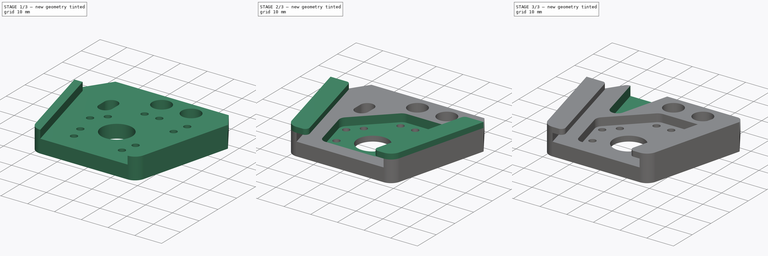
[diagram: build sequence overview — one tinted view per stage of 3, left to right]
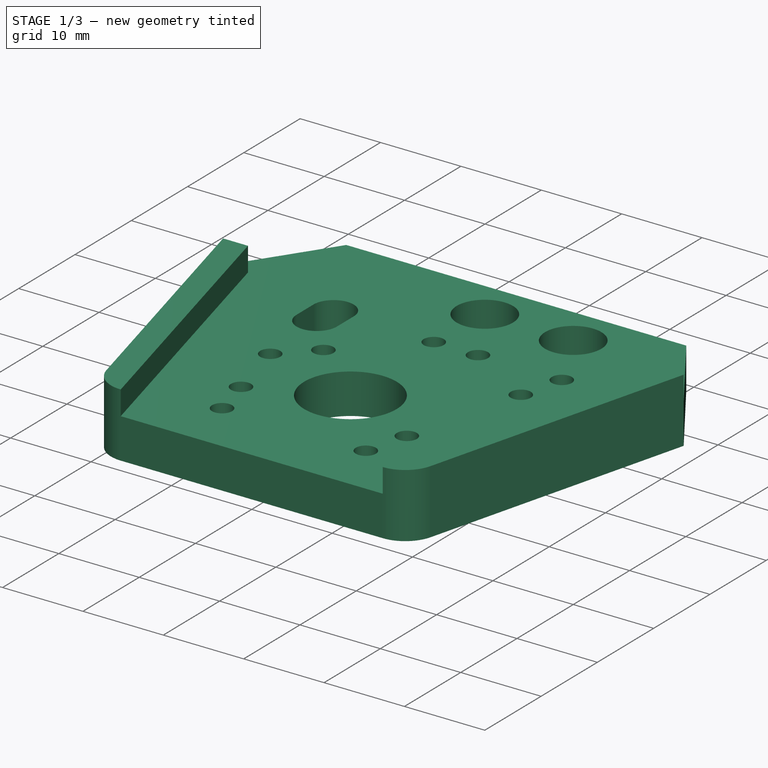
[diagram: stage 1 of 3 — iso view after this stage's code; geometry added in this stage tinted green]
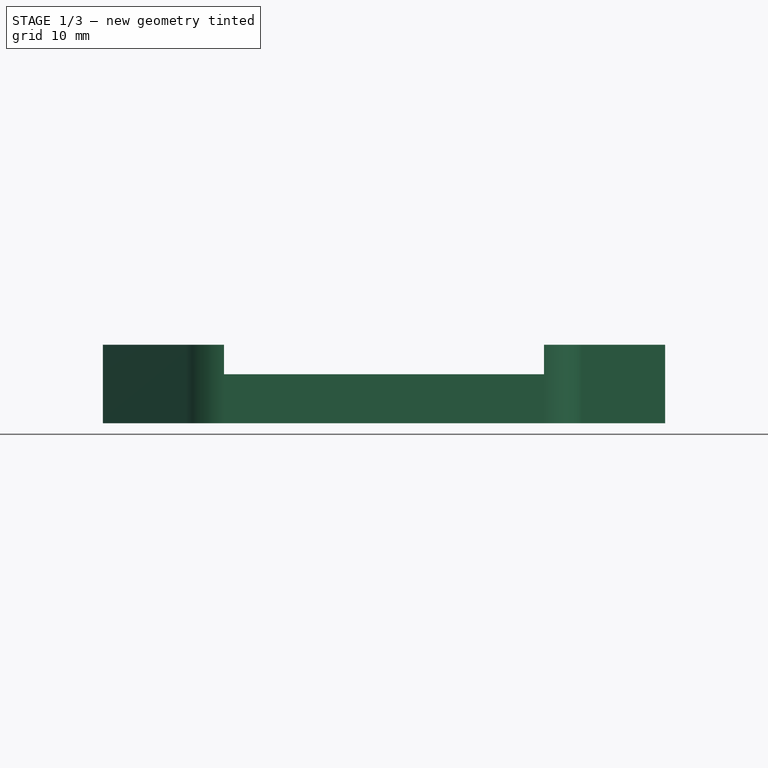
[diagram: stage 1 of 3 — front view after this stage's code; geometry added in this stage tinted green]
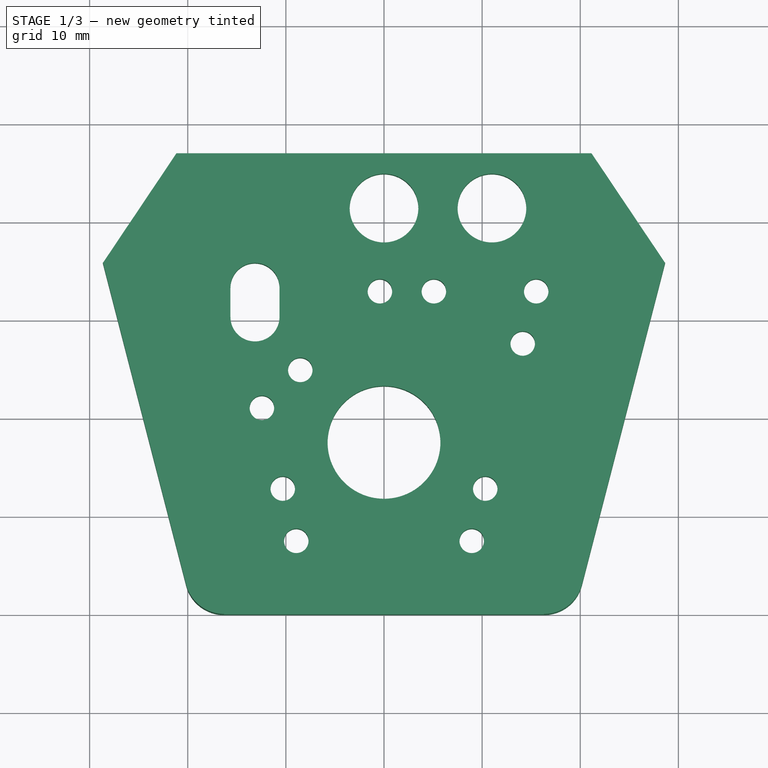
[diagram: stage 1 of 3 — top view after this stage's code; geometry added in this stage tinted green]
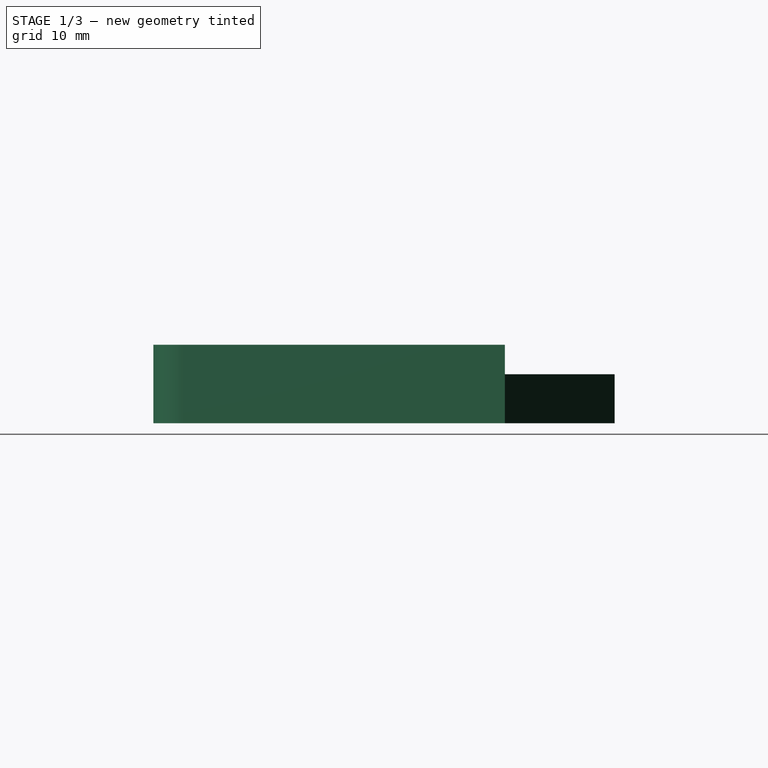
[diagram: stage 1 of 3 — right view after this stage's code; geometry added in this stage tinted green]
FCSTD DOCUMENT  (FreeCAD 0.20R29603 (Git))
Label: cruHolder
License: All rights reserved
LicenseURL: http://en.wikipedia.org/wiki/All_rights_reserved
objects: Sketcher::SketchObject×6, PartDesign::Pad×3, PartDesign::Fillet×2, PartDesign::Pocket×2, Part::Part2DObjectPython×1, Spreadsheet::Sheet×1, PartDesign::Plane×1, PartDesign::Body×1
note: 23 computed .brp shape members not serialized (recipe doc carries the construction recipe); baked Part::Feature solids carry a one-line shape summary decoded from their .brp

FEATURE [Sketcher::SketchObject] Sketch  label="master"
  FullyConstrained = true
  MapMode = 5
  expr: Constraints[151] = <<data>>.miniHoleDist
  expr: Constraints[156] = <<data>>.miniHoleDist
  expr: Constraints[158] = <<data>>.miniHoleDist
  sketch-geometry (60):
    g0: LineSegment StartX=16.3 StartY=0 StartZ=0 EndX=25.5516 EndY=35.8247 EndZ=0
    g1: LineSegment StartX=-16.3 StartY=0 StartZ=0 EndX=-25.5516 EndY=35.8247 EndZ=0
    g2: LineSegment StartX=19.3984 StartY=0 StartZ=0 EndX=28.65 EndY=35.8247 EndZ=0
    g3: LineSegment StartX=-19.3984 StartY=0 StartZ=0 EndX=-28.65 EndY=35.8247 EndZ=0
    g4: LineSegment StartX=-12.1688 StartY=0 StartZ=0 EndX=-21.4203 EndY=35.8247 EndZ=0
    g5: LineSegment StartX=12.1688 StartY=0 StartZ=0 EndX=21.4203 EndY=35.8247 EndZ=0
    g6: LineSegment StartX=19.3984 StartY=0 StartZ=0 EndX=12.6208 EndY=1.7503 EndZ=0
    g7: LineSegment StartX=25.5516 StartY=35.8247 StartZ=0 EndX=28.4563 EndY=35.0746 EndZ=0
    g8: LineSegment StartX=-21.15 StartY=47 StartZ=0 EndX=21.15 EndY=47 EndZ=0
    g9: Circle CenterX=0 CenterY=17.5373 CenterZ=0 NormalX=0 NormalY=0 NormalZ=1 AngleXU=0 Radius=5.75
    g10: LineSegment StartX=-28.4563 StartY=17.5373 StartZ=0 EndX=28.4563 EndY=17.5373 EndZ=0
    g11: LineSegment StartX=28.4563 StartY=35.0746 StartZ=0 EndX=28.4563 EndY=17.5373 EndZ=0
    g12: LineSegment StartX=-28.4563 StartY=17.5373 StartZ=0 EndX=-28.4563 EndY=0 EndZ=0
    g13: LineSegment StartX=-28.65 StartY=35.8247 StartZ=0 EndX=-21.15 EndY=47 EndZ=0
    g14: LineSegment StartX=21.15 StartY=47 StartZ=0 EndX=28.65 EndY=35.8247 EndZ=0
    g15: LineSegment StartX=-28.65 StartY=35.8247 StartZ=0 EndX=28.65 EndY=35.8247 EndZ=0
    g16: LineSegment StartX=-15.5706 StartY=29.6996 StartZ=0 EndX=-20.0383 EndY=47 EndZ=0
    g17: LineSegment StartX=-10.7294 StartY=29.6996 StartZ=0 EndX=-6.26165 EndY=47 EndZ=0
    g18: Circle CenterX=-13.15 CenterY=33.3247 CenterZ=0 NormalX=0 NormalY=0 NormalZ=1 AngleXU=0 Radius=2.5
    g19: ArcOfCircle CenterX=-13.15 CenterY=33.3247 CenterZ=0 NormalX=0 NormalY=0 NormalZ=1 AngleXU=0 Radius=2.5 StartAngle=0 EndAngle=3.14159
    g20: ArcOfCircle CenterX=-13.15 CenterY=30.3247 CenterZ=0 NormalX=0 NormalY=0 NormalZ=1 AngleXU=0 Radius=2.5 StartAngle=3.14159 EndAngle=6.28319
    g21: LineSegment StartX=-15.65 StartY=33.3247 StartZ=0 EndX=-15.65 EndY=30.3247 EndZ=0
    g22: LineSegment StartX=-10.65 StartY=30.3247 StartZ=0 EndX=-10.65 EndY=33.3247 EndZ=0
    g23: LineSegment StartX=-14.8628 StartY=20.4302 StartZ=0 EndX=-11.3622 EndY=6.87489 EndZ=0
    g24: ArcOfCircle CenterX=-8.94158 CenterY=7.5 CenterZ=0 NormalX=0 NormalY=0 NormalZ=1 AngleXU=0 Radius=2.5 StartAngle=3.39432 EndAngle=4.71239
    g25: LineSegment StartX=-8.94158 StartY=5 StartZ=0 EndX=8.94158 EndY=5 EndZ=0
    g26: ArcOfCircle CenterX=8.94158 CenterY=7.5 CenterZ=0 NormalX=0 NormalY=0 NormalZ=1 AngleXU=0 Radius=2.5 StartAngle=4.71239 EndAngle=6.03046
    g27: LineSegment StartX=11.3622 StartY=6.87489 StartZ=0 EndX=17.7085 EndY=31.4495 EndZ=0
    g28: ArcOfCircle CenterX=14.3196 CenterY=32.3247 CenterZ=0 NormalX=0 NormalY=0 NormalZ=1 AngleXU=0 Radius=3.5 StartAngle=6.03046 EndAngle=7.85398
    g29: LineSegment StartX=14.3196 StartY=35.8247 StartZ=0 EndX=0 EndY=35.8247 EndZ=0
    g30: ArcOfCircle CenterX=1.5e-15 CenterY=32.8247 CenterZ=0 NormalX=0 NormalY=0 NormalZ=1 AngleXU=0 Radius=3 StartAngle=1.5708 EndAngle=2.35035
    g31: LineSegment StartX=-2.10889 StartY=34.9584 StartZ=0 EndX=-14.1333 EndY=23.0737 EndZ=0
    g32: ArcOfCircle CenterX=-12.2001 CenterY=21.1178 CenterZ=0 NormalX=0 NormalY=0 NormalZ=1 AngleXU=0 Radius=2.75 StartAngle=2.35035 EndAngle=3.39432
    g33: LineSegment StartX=11.3622 StartY=6.87489 StartZ=0 EndX=13.7828 EndY=6.24979 EndZ=0
    g34: LineSegment StartX=-11.3622 StartY=6.87489 StartZ=0 EndX=-13.7828 EndY=6.24979 EndZ=0
    g35: Circle CenterX=11 CenterY=41.4123 CenterZ=0 NormalX=0 NormalY=0 NormalZ=1 AngleXU=0 Radius=3.5
    g36: Circle CenterX=0 CenterY=41.4123 CenterZ=0 NormalX=0 NormalY=0 NormalZ=1 AngleXU=0 Radius=3.5
    g37: LineSegment StartX=0 StartY=35.8247 StartZ=0 EndX=0 EndY=41.4123 EndZ=0
    g38: LineSegment StartX=0 StartY=41.4123 StartZ=0 EndX=0 EndY=47 EndZ=0
    g39: ArcOfCircle CenterX=-16.3002 CenterY=4 CenterZ=0 NormalX=0 NormalY=0 NormalZ=1 AngleXU=0 Radius=4 StartAngle=3.39432 EndAngle=4.71239
    g40: ArcOfCircle CenterX=16.3002 CenterY=4 CenterZ=0 NormalX=0 NormalY=0 NormalZ=1 AngleXU=0 Radius=4 StartAngle=4.71239 EndAngle=6.03046
    g41: LineSegment StartX=16.3002 StartY=0 StartZ=0 EndX=-16.3002 EndY=0 EndZ=0
    g42: LineSegment StartX=8.94158 StartY=7.5 StartZ=0 EndX=15.2879 EndY=32.0746 EndZ=0
    g43: LineSegment StartX=-8.94158 StartY=7.5 StartZ=0 EndX=-12.4422 EndY=21.0553 EndZ=0
    g44: Circle CenterX=-8.94158 CenterY=7.5 CenterZ=0 NormalX=0 NormalY=0 NormalZ=1 AngleXU=0 Radius=1.25
    g45: Circle CenterX=-10.3168 CenterY=12.8253 CenterZ=0 NormalX=0 NormalY=0 NormalZ=1 AngleXU=0 Radius=1.25
    g46: Circle CenterX=-12.4422 CenterY=21.0553 CenterZ=0 NormalX=0 NormalY=0 NormalZ=1 AngleXU=0 Radius=1.25
    g47: Circle CenterX=-8.53043 CenterY=24.9216 CenterZ=0 NormalX=0 NormalY=0 NormalZ=1 AngleXU=0 Radius=1.25
    g48: Circle CenterX=-0.4178 CenterY=32.94 CenterZ=0 NormalX=0 NormalY=0 NormalZ=1 AngleXU=0 Radius=1.25
    g49: Circle CenterX=5.0822 CenterY=32.94 CenterZ=0 NormalX=0 NormalY=0 NormalZ=1 AngleXU=0 Radius=1.25
    g50: Circle CenterX=8.94158 CenterY=7.5 CenterZ=0 NormalX=0 NormalY=0 NormalZ=1 AngleXU=0 Radius=1.25
    g51: Circle CenterX=10.3168 CenterY=12.8253 CenterZ=0 NormalX=0 NormalY=0 NormalZ=1 AngleXU=0 Radius=1.25
    g52: Circle CenterX=14.1361 CenterY=27.6147 CenterZ=0 NormalX=0 NormalY=0 NormalZ=1 AngleXU=0 Radius=1.25
    g53: Circle CenterX=15.5113 CenterY=32.94 CenterZ=0 NormalX=0 NormalY=0 NormalZ=1 AngleXU=0 Radius=1.25
    g54: LineSegment StartX=-12.4422 StartY=21.0553 StartZ=0 EndX=-8.53043 EndY=24.9216 EndZ=0
    g55: LineSegment StartX=-0.4178 StartY=32.94 StartZ=0 EndX=5.0822 EndY=32.94 EndZ=0
    g56: LineSegment StartX=-12.4422 StartY=21.0553 StartZ=0 EndX=-0.4178 EndY=32.94 EndZ=0
    g57: LineSegment StartX=8.94158 StartY=7.5 StartZ=0 EndX=10.3168 EndY=12.8253 EndZ=0
    g58: LineSegment StartX=14.1361 StartY=27.6147 StartZ=0 EndX=15.2879 EndY=32.0746 EndZ=0
    g59: LineSegment StartX=15.5113 StartY=32.94 StartZ=0 EndX=14.1361 EndY=27.6147 EndZ=0
  constraints (156):
    c: PointOnObject(g0,g-1)
    c: PointOnObject(g2,g-1)
    c: PointOnObject(g4,g-1)
    c: Symmetric(g4,g5,g-2)
    c: Coincident(g6,g2)
    c: PointOnObject(g6,g5)
    c: Distance(g6) = 7
    c: Perpendicular(g2,g7)
    c: Coincident(g0,g7)
    c: PointOnObject(g7,g2)
    c: Distance(g7) = 3
    c: Equal(g0,g2)
    c: Parallel(g4,g1)
    c: Parallel(g1,g3)
    c: Equal(g4,g1)
    c: Equal(g1,g3)
    c: PointOnObject(g3,g-1)
    c: Parallel(g5,g0)
    c: Parallel(g0,g2)
    c: DistanceX(g1,g0) = 32.6
    c: Symmetric(g4,g5,g-2)
    c: Perpendicular(g5,g6)
    c: Symmetric(g2,g3,g-2)
    c: Symmetric(g1,g0,g-2)
    c: DistanceX(g3,g2) = 57.3
    c: Distance(g2) = 37
    c: DistanceY(g8) = 47
    c: Symmetric(g8,g8,g-2)
    c: DistanceX(g3,g8) = 7.5
    c: PointOnObject(g9,g-2)
    c: Coincident(g11,g7)
    c: Coincident(g11,g10)
    c: Vertical(g11)
    c: Coincident(g12,g10)
    c: PointOnObject(g12,g-1)
    c: Vertical(g12)
    c: Symmetric(g10,g10,g-2)
    c: Equal(g11,g12)
    c: PointOnObject(g9,g10)
    c: Coincident(g13,g3)
    c: Coincident(g13,g8)
    c: Coincident(g14,g8)
    c: Coincident(g14,g2)
    c: Diameter(g9) = 11.5
    c: Coincident(g15,g3)
    c: Coincident(g15,g2)
    c: PointOnObject(g16,g8)
    c: PointOnObject(g17,g8)
    c: Parallel(g16,g4)
    c: Parallel(g17,g5)
    c: Diameter(g18) = 5
    c: Tangent(g18,g15)
    c: DistanceX(g3,g18) = 15.5
    c: Tangent(g19,g21) = -1.5708
    c: Tangent(g21,g20) = -1.5708
    c: Tangent(g20,g22) = -1.5708
    c: Tangent(g22,g19) = -1.5708
    c: Equal(g19,g20)
    c: Coincident(g19,g18)
    c: Vertical(g21)
    c: Equal(g19,g18)
    c: DistanceY(g22,g22) = 3
    c: Tangent(g17,g20) = -1.5708
    c: Tangent(g20,g16)
    c: Horizontal(g16,g17)
    c: Tangent(g23,g24) = -1.5708
    c: Tangent(g25,g26) = -1.5708
    c: Tangent(g26,g27) = -1.5708
    c: Tangent(g27,g28) = -1.5708
    c: PointOnObject(g28,g15)
    c: PointOnObject(g29,g15)
    c: Tangent(g29,g30) = -1.5708
    c: Tangent(g31,g32) = -1.5708
    c: Parallel(g23,g4)
    c: Parallel(g27,g5)
    c: Coincident(g33,g26)
    c: PointOnObject(g33,g5)
    c: Coincident(g34,g23)
    c: PointOnObject(g34,g4)
    c: Perpendicular(g23,g34)
    c: Perpendicular(g33,g27)
    c: Equal(g33,g34)
    c: Distance(g34) = 2.5
    c: Tangent(g24,g25) = -1.5708
    c: Tangent(g30,g31) = -1.5708
    c: Tangent(g28,g29) = -1.5708
    c: Symmetric(g24,g25,g-2)
    c: DistanceY(g-1,g24) = 5
    c: Diameter(g26) = 5
    c: Diameter(g28) = 7
    c: PointOnObject(g29,g-2)
    c: Diameter(g32) = 5.5
    c: Tangent(g32,g23) = -1.5708
    c: Diameter(g30) = 6
    c: Distance(g23) = 14
    c: Horizontal(g36,g35)
    c: Equal(g35,g36)
    c: Diameter(g35) = 7
    c: PointOnObject(g36,g-2)
    c: DistanceX(g36,g35) = 11
    c: Coincident(g37,g29)
    c: Coincident(g37,g36)
    c: Coincident(g38,g36)
    c: PointOnObject(g38,g8)
    c: Vertical(g38)
    c: Equal(g37,g38)
    c: PointOnObject(g39,g-1)
    c: Tangent(g39,g3) = 1.5708
    c: Tangent(g40,g2) = -1.5708
    c: Coincident(g41,g39)
    c: Symmetric(g39,g40,g-2)
    c: Tangent(g41,g40) = 1.5708
    c: Equal(g40,g39)
    c: Diameter(g40) = 8
    c: Coincident(g42,g26)
    c: Equal(g43,g23)
    c: Parallel(g43,g23)
    c: Equal(g42,g27)
    c: Parallel(g42,g27)
    c: PointOnObject(g45,g43)
    c: Coincident(g46,g43)
    c: Coincident(g50,g26)
    c: PointOnObject(g51,g42)
    c: PointOnObject(g52,g42)
    c: Equal(g45,g44)
    c: Equal(g45, g50-g53) x4
    c: Equal(g45,g49)
    c: Equal(g45,g48)
    c: Equal(g45,g47)
    c: Equal(g45,g46)
    c: Diameter(g45) = 2.5
    c: Coincident(g54,g46)
    c: Coincident(g54,g47)
    c: Coincident(g55,g48)
    c: Coincident(g55,g49)
    c: Parallel(g55,g29)
    c: Coincident(g56,g46)
    c: Coincident(g56,g48)
    c: Equal(g56,g31)
    c: Parallel(g31,g56)
    c: Coincident(g57,g26)
    c: Coincident(g57,g51)
    c: Coincident(g58,g52)
    c: Coincident(g58,g42)
    c: Coincident(g59,g53)
    c: Coincident(g59,g52)
    c: Coincident(g24,g43)
    c: Coincident(g24,g44)
    c: Distance(g24,g45) = 5.5
    c: Equal(g55,g54)
    c: Equal(g54,g59)
    c: Parallel(g59,g27)
    c: Horizontal(g53,g49)
    c: Distance(g55) = 5.5
    c: PointOnObject(g47,g56)
    c: Distance(g51,g26) = 5.5
FEATURE [Part::Part2DObjectPython] Clone2D  label="master (2D)"  # Draft 2D object (typed FeaturePython)
  Fuse = false
  Objects = -> [Sketch]
  Scale = (1,1,1)
FEATURE [Sketcher::SketchObject] Sketch001
  ExternalGeometry = -> [Clone2D]
  FullyConstrained = true
  MapMode = 5
  Support = -> [XY_Plane]
  sketch-geometry (25):
    g0: LineSegment StartX=-21.15 StartY=47 StartZ=0 EndX=-28.65 EndY=35.8247 EndZ=0
    g1: LineSegment StartX=-28.65 StartY=35.8247 StartZ=0 EndX=-20.1731 EndY=2.99983 EndZ=0
    g2: ArcOfCircle CenterX=-16.3002 CenterY=4 CenterZ=0 NormalX=0 NormalY=0 NormalZ=1 AngleXU=0 Radius=4 StartAngle=3.39432 EndAngle=4.71239
    g3: LineSegment StartX=-16.3002 StartY=2.176e-13 StartZ=0 EndX=16.3002 EndY=8.62e-14 EndZ=0
    g4: ArcOfCircle CenterX=16.3002 CenterY=4 CenterZ=0 NormalX=0 NormalY=0 NormalZ=1 AngleXU=0 Radius=4 StartAngle=4.71239 EndAngle=6.03046
    g5: LineSegment StartX=20.1731 StartY=2.99983 StartZ=0 EndX=28.65 EndY=35.8247 EndZ=0
    g6: LineSegment StartX=28.65 StartY=35.8247 StartZ=0 EndX=21.15 EndY=47 EndZ=0
    g7: LineSegment StartX=21.15 StartY=47 StartZ=0 EndX=-21.15 EndY=47 EndZ=0
    g8: Circle CenterX=0 CenterY=17.5373 CenterZ=0 NormalX=0 NormalY=0 NormalZ=1 AngleXU=0 Radius=5.75
    g9: Circle CenterX=0 CenterY=41.4123 CenterZ=0 NormalX=0 NormalY=0 NormalZ=1 AngleXU=0 Radius=3.5
    g10: Circle CenterX=11 CenterY=41.4123 CenterZ=0 NormalX=0 NormalY=0 NormalZ=1 AngleXU=0 Radius=3.5
    g11: ArcOfCircle CenterX=-13.15 CenterY=33.3247 CenterZ=0 NormalX=0 NormalY=0 NormalZ=1 AngleXU=0 Radius=2.5 StartAngle=0 EndAngle=3.14159
    g12: ArcOfCircle CenterX=-13.15 CenterY=30.3247 CenterZ=0 NormalX=0 NormalY=0 NormalZ=1 AngleXU=0 Radius=2.5 StartAngle=3.14159 EndAngle=6.28319
    g13: LineSegment StartX=-15.65 StartY=33.3247 StartZ=0 EndX=-15.65 EndY=30.3247 EndZ=0
    g14: LineSegment StartX=-10.65 StartY=30.3247 StartZ=0 EndX=-10.65 EndY=33.3247 EndZ=0
    g15: Circle CenterX=-8.94158 CenterY=7.5 CenterZ=0 NormalX=0 NormalY=0 NormalZ=1 AngleXU=0 Radius=1.25
    g16: Circle CenterX=-10.3168 CenterY=12.8253 CenterZ=0 NormalX=0 NormalY=0 NormalZ=1 AngleXU=0 Radius=1.25
    g17: Circle CenterX=-12.4422 CenterY=21.0553 CenterZ=0 NormalX=0 NormalY=0 NormalZ=1 AngleXU=0 Radius=1.25
    g18: Circle CenterX=-8.53043 CenterY=24.9216 CenterZ=0 NormalX=0 NormalY=0 NormalZ=1 AngleXU=0 Radius=1.25
    g19: Circle CenterX=8.94158 CenterY=7.5 CenterZ=0 NormalX=0 NormalY=0 NormalZ=1 AngleXU=0 Radius=1.25
    g20: Circle CenterX=10.3168 CenterY=12.8253 CenterZ=0 NormalX=0 NormalY=0 NormalZ=1 AngleXU=0 Radius=1.25
    g21: Circle CenterX=14.1361 CenterY=27.6147 CenterZ=0 NormalX=0 NormalY=0 NormalZ=1 AngleXU=0 Radius=1.25
    g22: Circle CenterX=15.5113 CenterY=32.94 CenterZ=0 NormalX=0 NormalY=0 NormalZ=1 AngleXU=0 Radius=1.25
    g23: Circle CenterX=5.0822 CenterY=32.94 CenterZ=0 NormalX=0 NormalY=0 NormalZ=1 AngleXU=0 Radius=1.25
    g24: Circle CenterX=-0.4178 CenterY=32.94 CenterZ=0 NormalX=0 NormalY=0 NormalZ=1 AngleXU=0 Radius=1.25
  constraints (50):
    c: Coincident(g-9,g0)
    c: Coincident(g0,g-10)
    c: Coincident(g0,g1)
    c: Coincident(g1,g-11)
    c: Tangent(g1,g2) = -1.5708
    c: Coincident(g2,g-11)
    c: Tangent(g2,g3) = -1.5708
    c: Tangent(g3,g4) = -1.5708
    c: Coincident(g4,g-12)
    c: Coincident(g4,g5)
    c: Coincident(g5,g-13)
    c: Coincident(g5,g6)
    c: Coincident(g6,g-13)
    c: Coincident(g6,g7)
    c: Coincident(g7,g0)
    c: Coincident(g-12,g3)
    c: Coincident(g8,g-6)
    c: Coincident(g9,g-4)
    c: Coincident(g10,g-5)
    c: Tangent(g11,g13) = -1.5708
    c: Tangent(g13,g12) = -1.5708
    c: Tangent(g12,g14) = -1.5708
    c: Tangent(g14,g11) = -1.5708
    c: Equal(g11,g12)
    c: Coincident(g11,g-7)
    c: Coincident(g12,g-8)
    c: Equal(g-7,g11)
    c: Equal(g-4,g9)
    c: Equal(g9,g10)
    c: Equal(g8,g-6)
    c: Coincident(g15,g-17)
    c: Coincident(g16,g-16)
    c: Coincident(g17,g-15)
    c: Coincident(g18,g-14)
    c: Coincident(g19,g-18)
    c: Coincident(g20,g-19)
    c: Coincident(g21,g-20)
    c: Coincident(g22,g-21)
    c: Coincident(g23,g-22)
    c: Coincident(g24,g-23)
    c: Equal(g15,g16)
    c: Equal(g16,g17)
    c: Equal(g17,g18)
    c: Equal(g18,g24)
    c: Equal(g24,g23)
    c: Equal(g23,g22)
    c: Equal(g22,g21)
    c: Equal(g21,g20)
    c: Equal(g20,g19)
    c: Equal(g19,g-17)
FEATURE [PartDesign::Pad] Pad  label="basebody"
  Direction = (0,0,1)
  Length = 5
  Length2 = 10
  Profile = -> Sketch001
  ReferenceAxis = -> Sketch001 [N_Axis]
  Type = 0
  expr: Length = <<data>>.baseThickness
FEATURE [Sketcher::SketchObject] Sketch002
  ExternalGeometry = -> [Clone2D]
  FullyConstrained = true
  MapMode = 5
  Support = -> [XY_Plane]
  sketch-geometry (8):
    g0: LineSegment StartX=-25.5516 StartY=35.8247 StartZ=0 EndX=-28.65 EndY=35.8247 EndZ=0
    g1: LineSegment StartX=-28.65 StartY=35.8247 StartZ=0 EndX=-20.1731 EndY=2.99983 EndZ=0
    g2: ArcOfCircle CenterX=-16.3002 CenterY=4 CenterZ=0 NormalX=0 NormalY=0 NormalZ=1 AngleXU=0 Radius=4 StartAngle=3.39432 EndAngle=4.71239
    g3: LineSegment StartX=-16.3002 StartY=2.185e-13 StartZ=0 EndX=-25.5516 EndY=35.8247 EndZ=0
    g4: LineSegment StartX=28.65 StartY=35.8247 StartZ=0 EndX=25.5516 EndY=35.8247 EndZ=0
    g5: LineSegment StartX=28.65 StartY=35.8247 StartZ=0 EndX=20.1731 EndY=2.99983 EndZ=0
    g6: ArcOfCircle CenterX=16.3002 CenterY=4 CenterZ=0 NormalX=0 NormalY=0 NormalZ=1 AngleXU=0 Radius=4 StartAngle=4.71234 EndAngle=6.03046
    g7: LineSegment StartX=16.3 StartY=9.139e-13 StartZ=0 EndX=25.5516 EndY=35.8247 EndZ=0
  constraints (16):
    c: Coincident(g-3,g0)
    c: Coincident(g0,g-4)
    c: Coincident(g0,g1)
    c: Coincident(g1,g-5)
    c: Tangent(g1,g2) = -1.5708
    c: Coincident(g2,g-5)
    c: Coincident(g2,g3)
    c: Coincident(g3,g0)
    c: Coincident(g-8,g4)
    c: Coincident(g4,g-7)
    c: Coincident(g4,g5)
    c: Coincident(g5,g-6)
    c: Tangent(g5,g6) = 1.5708
    c: Coincident(g6,g-7)
    c: Coincident(g6,g7)
    c: Coincident(g7,g4)
FEATURE [Spreadsheet::Sheet] Spreadsheet  label="data"
  cells = A1=baseThickness; B1(baseThickness)=5; A2=insetDepth; B2(insetDepth)=3; A3=slotHeight; B3(slotHeight)=3; A4=miniHoleDist; B4(miniHoleDist)=5.5
FEATURE [PartDesign::Pad] Pad001  label="sides"
  BaseFeature = -> Pad
  Direction = (0,0,1)
  Length = 8
  Length2 = 10
  Profile = -> Sketch002
  ReferenceAxis = -> Sketch002 [N_Axis]
  Type = 0
  expr: Length = <<data>>.baseThickness + <<data>>.slotHeight
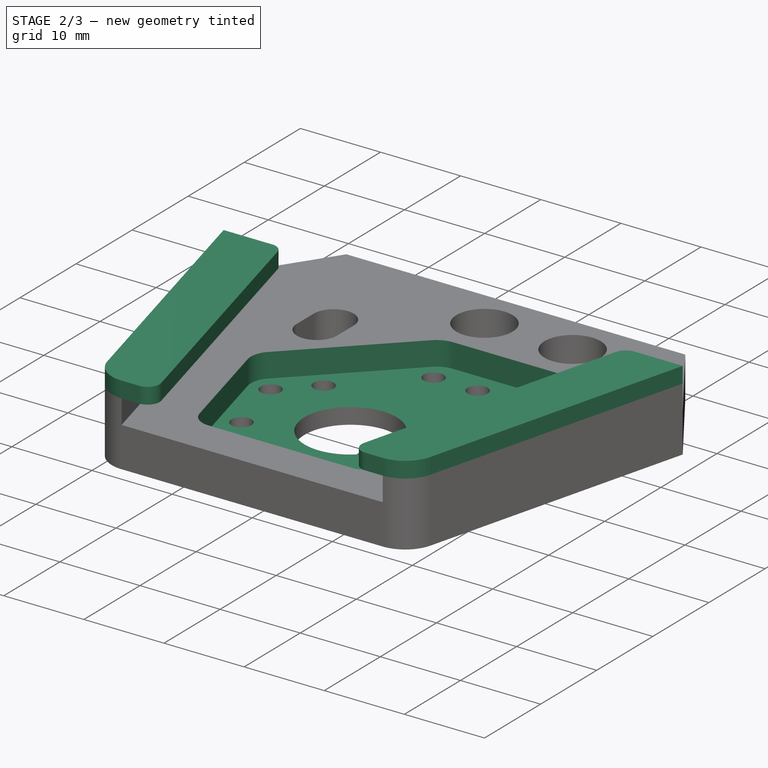
[diagram: stage 2 of 3 — iso view after this stage's code; geometry added in this stage tinted green]
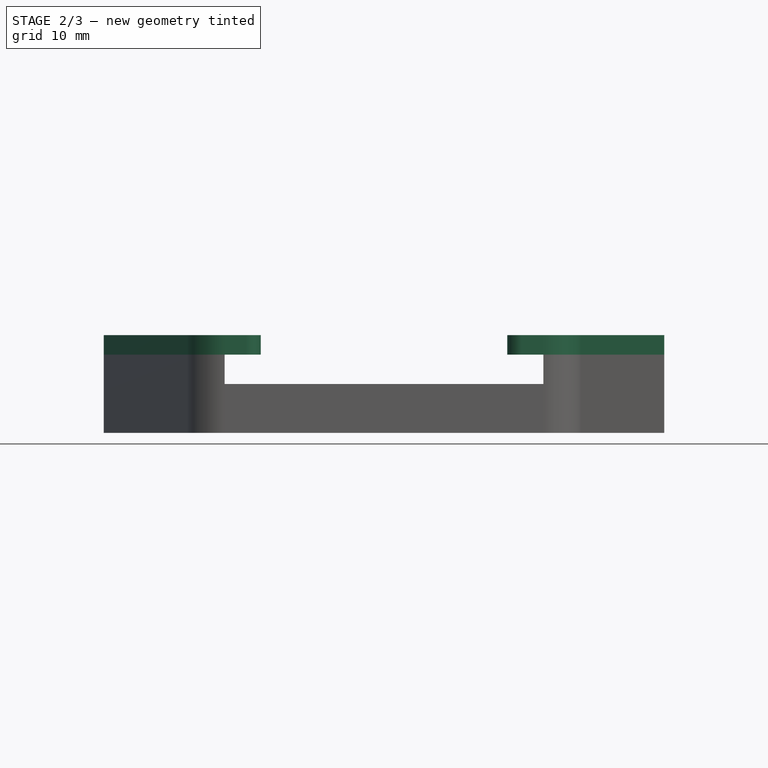
[diagram: stage 2 of 3 — front view after this stage's code; geometry added in this stage tinted green]
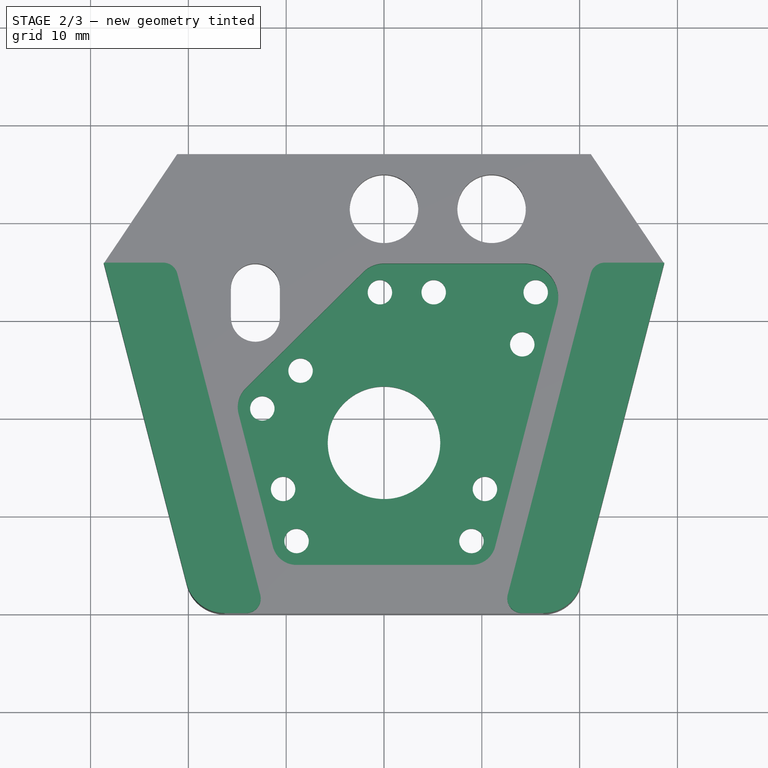
[diagram: stage 2 of 3 — top view after this stage's code; geometry added in this stage tinted green]
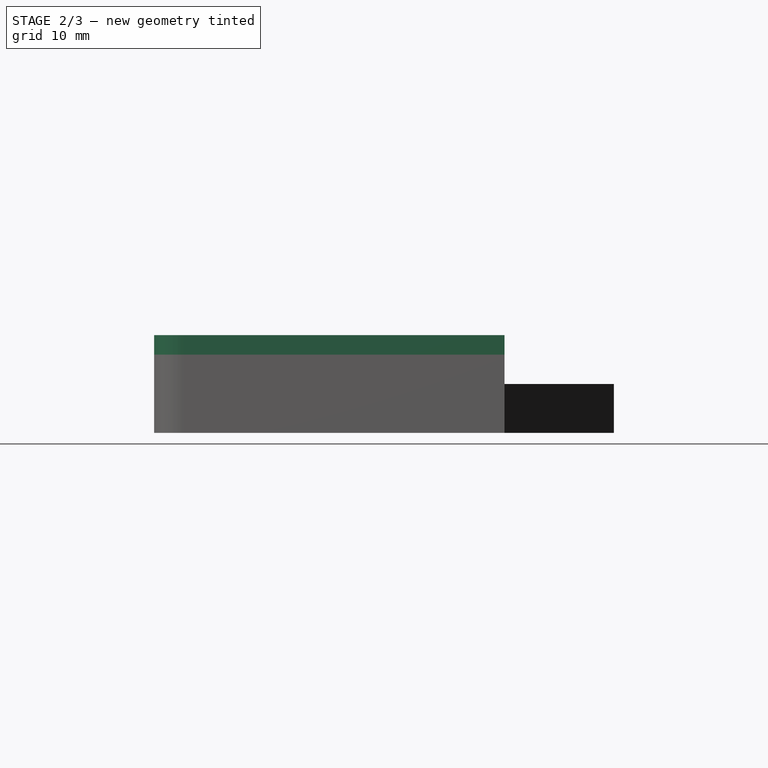
[diagram: stage 2 of 3 — right view after this stage's code; geometry added in this stage tinted green]
FEATURE [Sketcher::SketchObject] Sketch003
  AttachmentOffset = pos=(0,0,8) rot=(0,0,1;0rad)
  ExternalGeometry = -> [Clone2D]
  FullyConstrained = true
  MapMode = 5
  Placement = pos=(0,0,8) rot=(0,0,1;0rad)
  Support = -> [XY_Plane]
  expr: .AttachmentOffset.Base.z = <<data>>.baseThickness + <<data>>.slotHeight
  sketch-geometry (10):
    g0: LineSegment StartX=-16.3002 StartY=2.18e-13 StartZ=0 EndX=-12.1688 EndY=8.83e-14 EndZ=0
    g1: LineSegment StartX=-12.1688 StartY=8.83e-14 StartZ=0 EndX=-21.4203 EndY=35.8247 EndZ=0
    g2: LineSegment StartX=-21.4203 StartY=35.8247 StartZ=0 EndX=-28.65 EndY=35.8247 EndZ=0
    g3: LineSegment StartX=-28.65 StartY=35.8247 StartZ=0 EndX=-20.1731 EndY=2.99983 EndZ=0
    g4: ArcOfCircle CenterX=-16.3002 CenterY=4 CenterZ=0 NormalX=0 NormalY=0 NormalZ=1 AngleXU=0 Radius=4 StartAngle=3.39432 EndAngle=4.71239
    g5: LineSegment StartX=16.3002 StartY=2.274e-13 StartZ=0 EndX=12.1688 EndY=0 EndZ=0
    g6: LineSegment StartX=12.1688 StartY=0 StartZ=0 EndX=21.4203 EndY=35.8247 EndZ=0
    g7: LineSegment StartX=21.4203 StartY=35.8247 StartZ=0 EndX=28.65 EndY=35.8247 EndZ=0
    g8: LineSegment StartX=28.65 StartY=35.8247 StartZ=0 EndX=20.1731 EndY=2.99983 EndZ=0
    g9: ArcOfCircle CenterX=16.3002 CenterY=4 CenterZ=0 NormalX=0 NormalY=0 NormalZ=1 AngleXU=0 Radius=4 StartAngle=4.71239 EndAngle=6.03046
  constraints (20):
    c: Tangent(g-3,g0) = -1.5708
    c: Coincident(g0,g1)
    c: Coincident(g1,g-7)
    c: Coincident(g1,g2)
    c: Coincident(g2,g-8)
    c: Coincident(g2,g3)
    c: Coincident(g3,g-3)
    c: Tangent(g3,g4) = -1.5708
    c: Coincident(g4,g0)
    c: Coincident(g0,g-7)
    c: Coincident(g-4,g5)
    c: Coincident(g5,g-6)
    c: Coincident(g5,g6)
    c: Coincident(g6,g-6)
    c: Coincident(g6,g7)
    c: Coincident(g7,g-5)
    c: Coincident(g7,g8)
    c: Coincident(g8,g-4)
    c: Tangent(g8,g9) = 1.5708
    c: Coincident(g9,g5)
FEATURE [PartDesign::Pad] Pad002  label="slotTops"
  BaseFeature = -> Pad001
  Direction = (0,0,1)
  Length = 2
  Length2 = 10
  Profile = -> Sketch003
  ReferenceAxis = -> Sketch003 [N_Axis]
  Type = 0
FEATURE [PartDesign::Fillet] Fillet
  Base = -> Pad002 [Edge129,Edge122,Edge116,Edge103]
  BaseFeature = -> Pad002
  Radius = 1.5
  SupportTransform = false
  UseAllEdges = false
FEATURE [PartDesign::Plane] DatumPlane
  AttachmentOffset = pos=(0,0,5) rot=(0,0,1;0rad)
  Length = 70.1462
  MapMode = 2
  Placement = pos=(0,0,5) rot=(0,0,1;0rad)
  ResizeMode = 0
  Support = -> [Fillet]
  Width = 84.8462
  expr: .AttachmentOffset.Base.z = <<data>>.baseThickness
FEATURE [Sketcher::SketchObject] Sketch004
  ExternalGeometry = -> [Clone2D]
  FullyConstrained = false
  MapMode = 5
  Placement = pos=(0,0,5) rot=(0,0,1;0rad)
  Support = -> [DatumPlane]
  sketch-geometry (11):
    g0: LineSegment StartX=-11.3622 StartY=6.87489 StartZ=0 EndX=-14.8628 EndY=20.4302 EndZ=0
    g1: LineSegment StartX=-14.1333 StartY=23.0737 StartZ=0 EndX=-2.10889 EndY=34.9584 EndZ=0
    g2: LineSegment StartX=3.3e-15 StartY=35.8247 StartZ=0 EndX=14.3196 EndY=35.8247 EndZ=0
    g3: LineSegment StartX=17.7085 StartY=31.4495 StartZ=0 EndX=11.3622 EndY=6.87489 EndZ=0
    g4: LineSegment StartX=8.94158 StartY=5 StartZ=0 EndX=-8.94158 EndY=5 EndZ=0
    g5: ArcOfCircle CenterX=-8.94158 CenterY=7.5 CenterZ=0 NormalX=0 NormalY=0 NormalZ=1 AngleXU=0 Radius=2.5 StartAngle=3.39432 EndAngle=4.71239
    g6: ArcOfCircle CenterX=-12.2001 CenterY=21.1178 CenterZ=0 NormalX=0 NormalY=0 NormalZ=1 AngleXU=0 Radius=2.75 StartAngle=2.35035 EndAngle=3.39432
    g7: ArcOfCircle CenterX=8.94158 CenterY=7.5 CenterZ=0 NormalX=0 NormalY=0 NormalZ=1 AngleXU=0 Radius=2.5 StartAngle=4.71239 EndAngle=6.03046
    g8: ArcOfCircle CenterX=14.3196 CenterY=32.3247 CenterZ=0 NormalX=0 NormalY=0 NormalZ=1 AngleXU=0 Radius=3.5 StartAngle=6.03046 EndAngle=7.85398
    g9: ArcOfCircle CenterX=3.2e-15 CenterY=32.8247 CenterZ=0 NormalX=0 NormalY=0 NormalZ=1 AngleXU=0 Radius=3 StartAngle=1.5708 EndAngle=2.35035
    g10: Circle CenterX=-12.4422 CenterY=21.0553 CenterZ=0 NormalX=0 NormalY=0 NormalZ=1 AngleXU=0 Radius=2.36581
  constraints (27):
    c: Horizontal(g2)
    c: Horizontal(g4)
    c: PointOnObject(g-3,g1)
    c: PointOnObject(g-3,g1)
    c: PointOnObject(g-7,g2)
    c: PointOnObject(g-6,g3)
    c: PointOnObject(g-6,g3)
    c: PointOnObject(g-5,g4)
    c: PointOnObject(g-4,g0)
    c: PointOnObject(g-4,g0)
    c: Tangent(g0,g5) = 1.5708
    c: Tangent(g4,g5) = 1.5708
    c: Equal(g5,g-8)
    c: Tangent(g1,g6) = 1.5708
    c: Tangent(g0,g6) = 1.5708
    c: Equal(g-9,g6)
    c: Tangent(g4,g7) = 1.5708
    c: Tangent(g3,g7) = 1.5708
    c: Equal(g7,g-12)
    c: Tangent(g2,g8) = 1.5708
    c: Tangent(g3,g8) = 1.5708
    c: Equal(g8,g-11)
    c: Tangent(g1,g9) = 1.5708
    c: Tangent(g2,g9) = 1.5708
    c: Equal(g-10,g9)
    c: Coincident(g10,g-13)
    c: Diameter(g10) = 4.73163
FEATURE [PartDesign::Pocket] Pocket
  BaseFeature = -> Fillet
  Direction = (0,0,-1)
  Length = 3
  Length2 = 5
  Profile = -> Sketch004
  ReferenceAxis = -> Sketch004 [N_Axis]
  Type = 0
  expr: Length = <<data>>.insetDepth
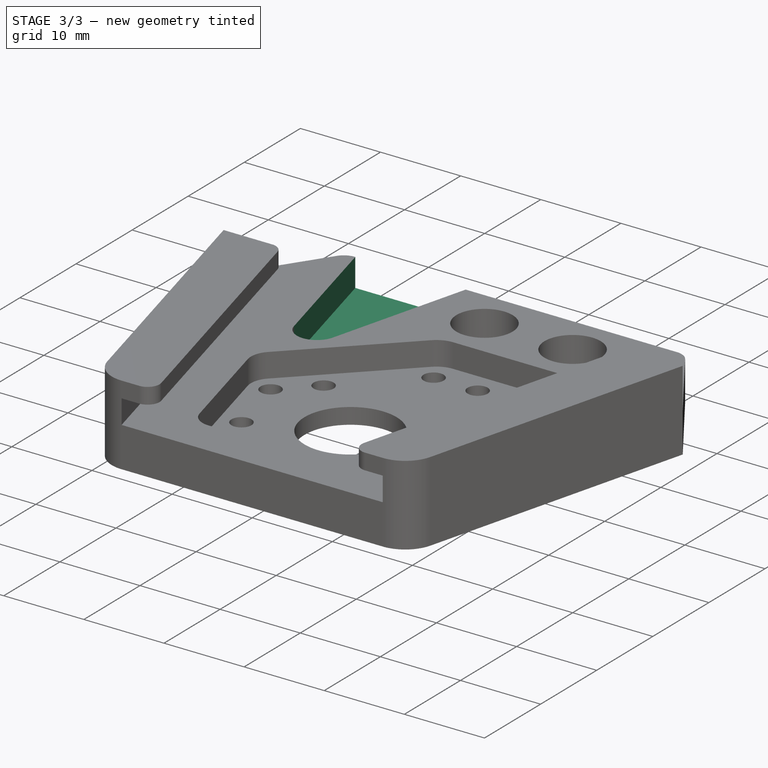
[diagram: stage 3 of 3 — iso view after this stage's code; geometry added in this stage tinted green]
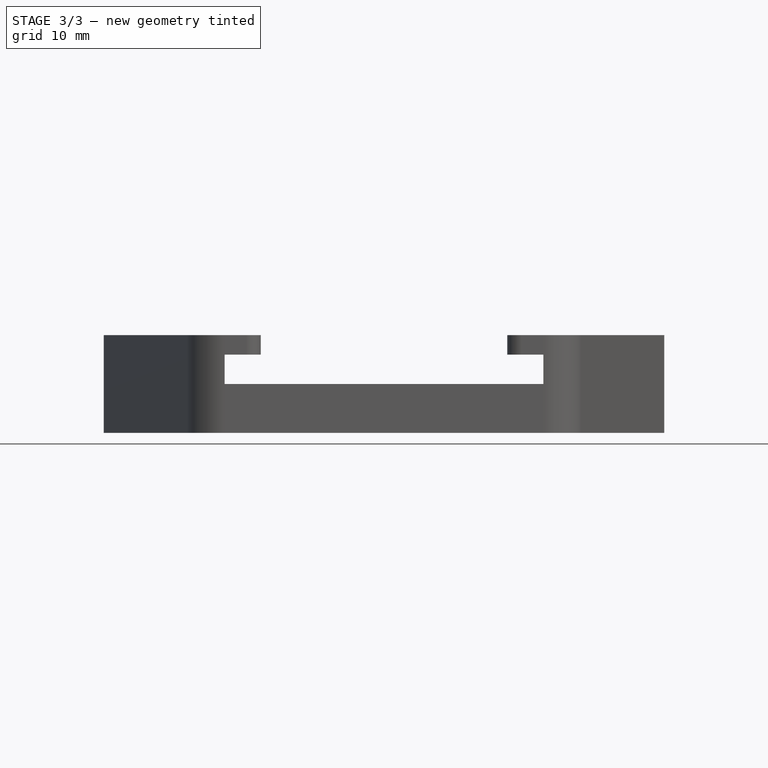
[diagram: stage 3 of 3 — front view after this stage's code; geometry added in this stage tinted green]
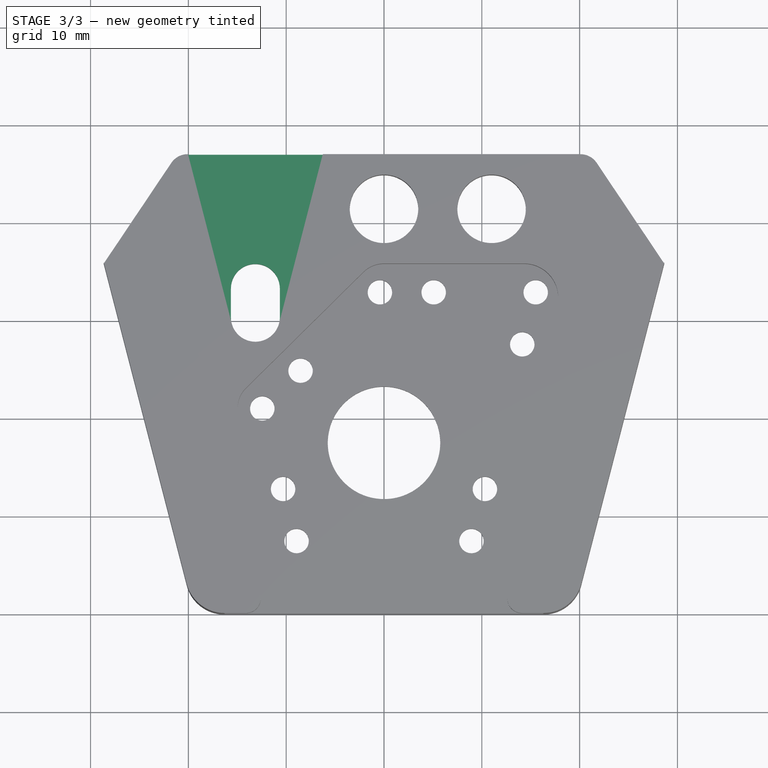
[diagram: stage 3 of 3 — top view after this stage's code; geometry added in this stage tinted green]
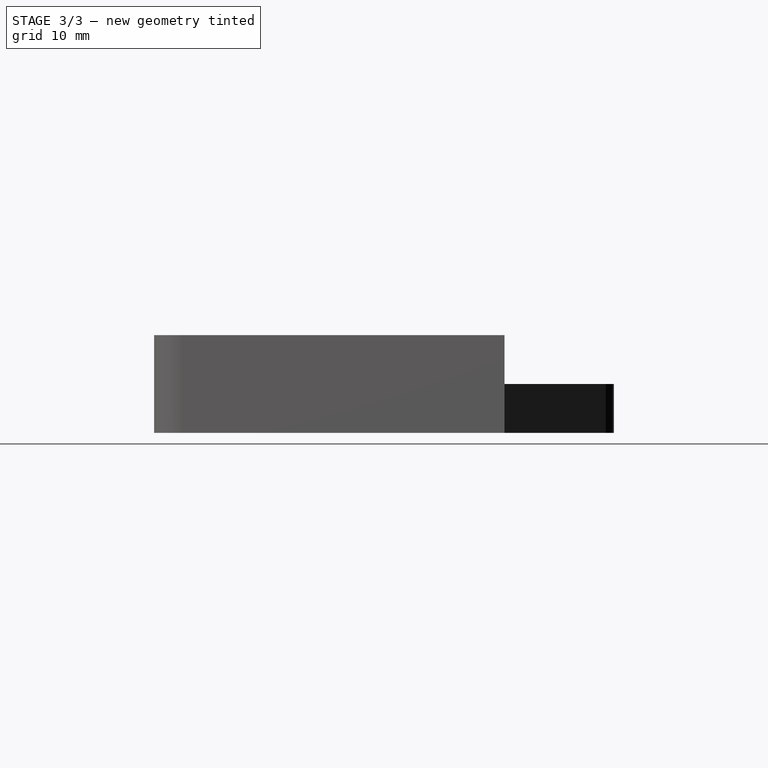
[diagram: stage 3 of 3 — right view after this stage's code; geometry added in this stage tinted green]
FEATURE [Sketcher::SketchObject] Sketch005
  ExternalGeometry = -> [Clone2D]
  FullyConstrained = true
  MapMode = 5
  Placement = pos=(0,0,5) rot=(0,0,1;0rad)
  Support = -> [DatumPlane]
  sketch-geometry (4):
    g0: LineSegment StartX=-6.26165 StartY=47 StartZ=0 EndX=-10.7294 EndY=29.6996 EndZ=0
    g1: LineSegment StartX=-15.5706 StartY=29.6996 StartZ=0 EndX=-20.0383 EndY=47 EndZ=0
    g2: LineSegment StartX=-20.0383 StartY=47 StartZ=0 EndX=-6.26165 EndY=47 EndZ=0
    g3: ArcOfCircle CenterX=-13.15 CenterY=30.3247 CenterZ=0 NormalX=0 NormalY=0 NormalZ=1 AngleXU=0 Radius=2.5 StartAngle=3.39432 EndAngle=6.03046
  constraints (9):
    c: Coincident(g-4,g0)
    c: Coincident(g-4,g0)
    c: Coincident(g-3,g1)
    c: Coincident(g1,g-3)
    c: Coincident(g1,g2)
    c: Coincident(g2,g0)
    c: Coincident(g3,g-5)
    c: Coincident(g1,g3)
    c: Horizontal(g3,g1)
FEATURE [PartDesign::Pocket] Pocket001
  BaseFeature = -> Pocket
  Direction = (0,0,-1)
  Length = 3.5
  Length2 = 0
  Profile = -> Sketch005
  ReferenceAxis = -> Sketch005 [N_Axis]
  Type = 0
FEATURE [PartDesign::Fillet] Fillet001
  Base = -> Pocket001 [Edge67,Edge57]
  BaseFeature = -> Pocket001
  Radius = 2
  SupportTransform = false
  UseAllEdges = false
FEATURE [PartDesign::Body] Body
  Group = -> [Sketch001,Clone2D,Pad,Sketch002,Pad001,Sketch003,Pad002,Fillet,DatumPlane,Sketch004,Pocket,Sketch005,Pocket001,Fillet001]
  Origin = -> Origin
  Tip = -> Fillet001
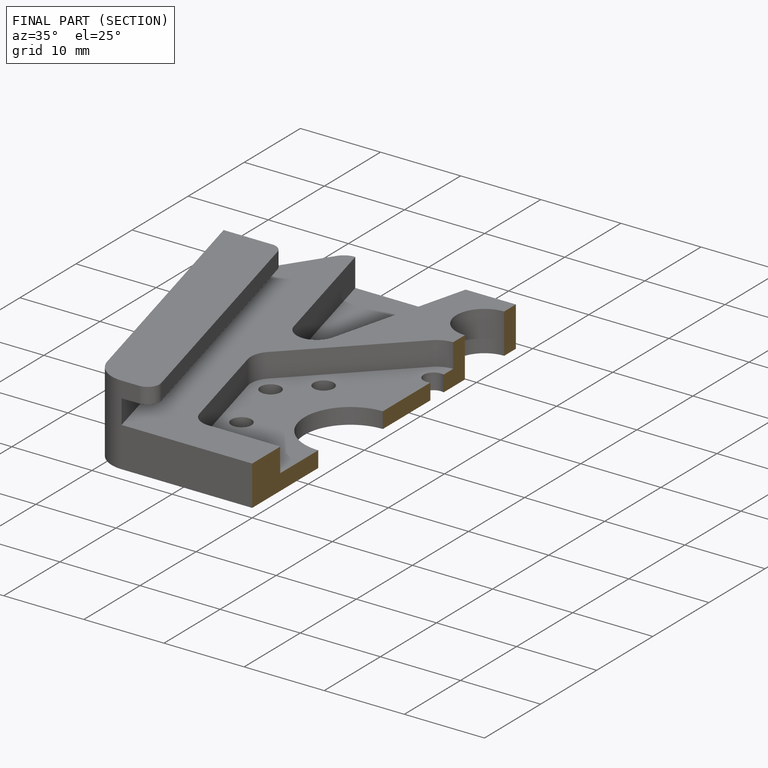
[diagram: finished part — half-section view (interior)]
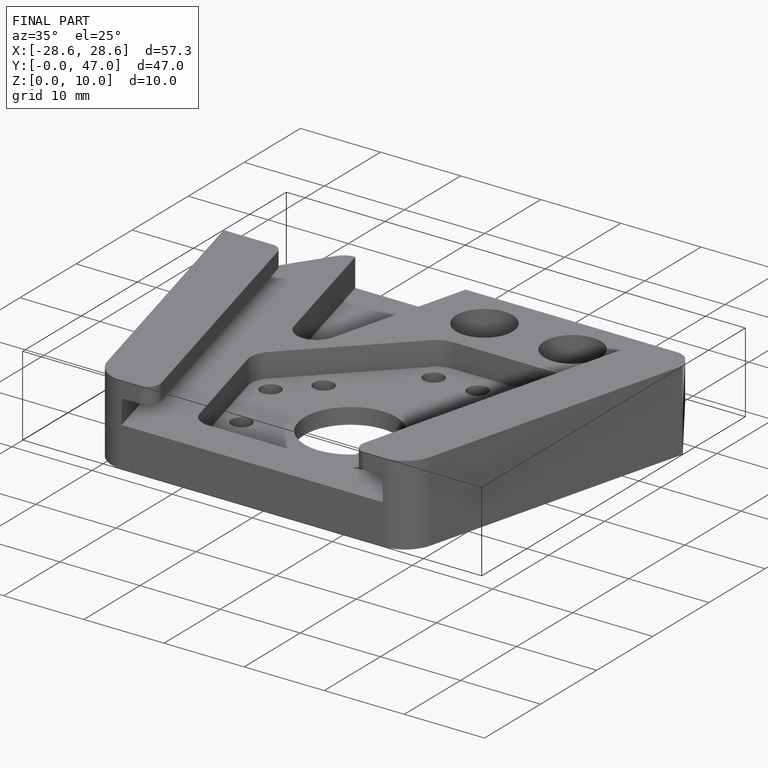
[diagram: finished part — iso view with bounding-box wireframe]
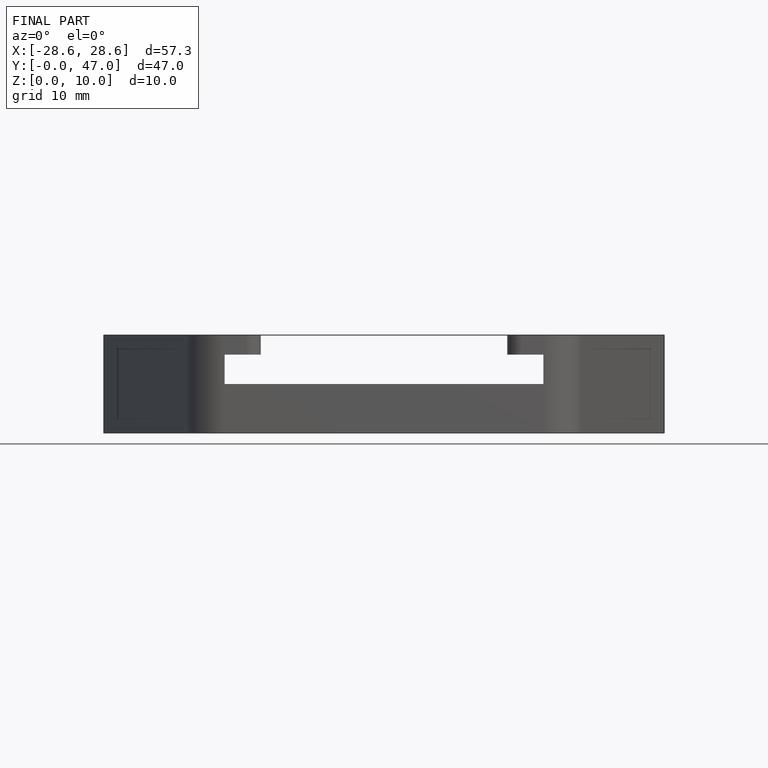
[diagram: finished part — front view with bounding-box wireframe]
